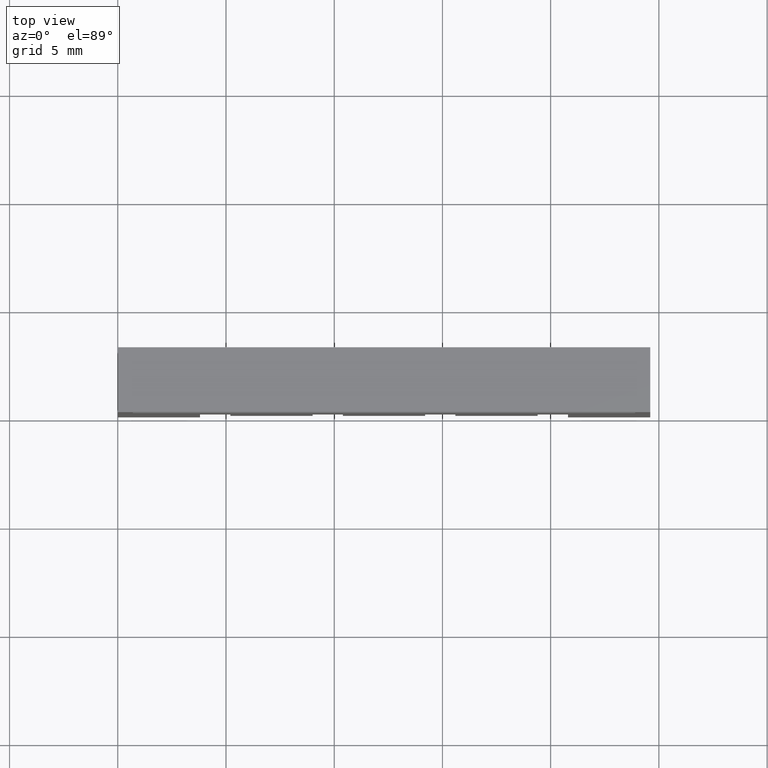
[diagram: clean part render]
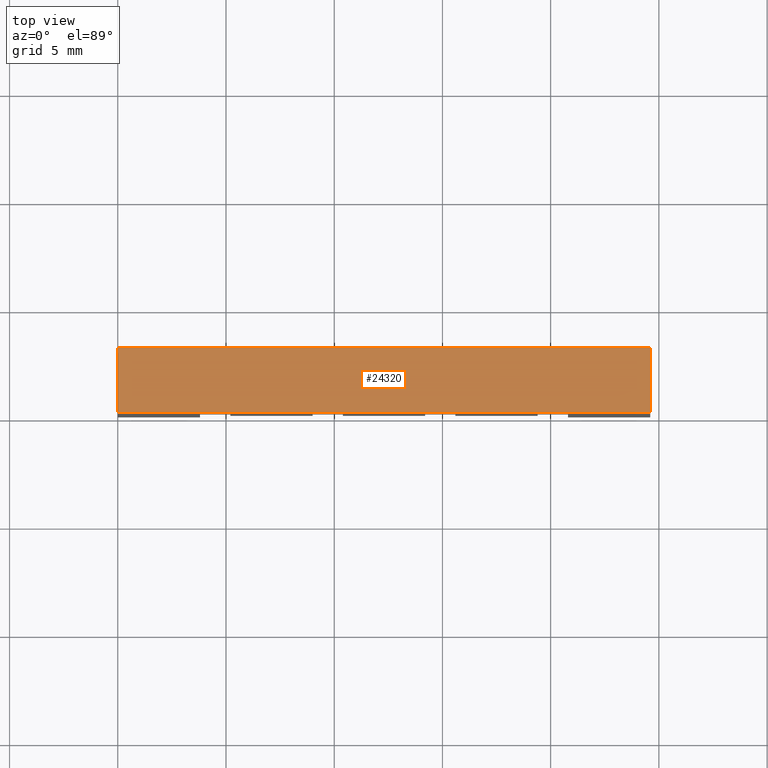
[diagram: same view with one face highlighted and labeled with its STEP entity id]
A machine part, top view. The second image highlights one B-rep face of the part: STEP entity #24320.
In plain terms, the highlighted planar face has unit normal (0, 0, -1).
Its self-contained STEP definition (entity closure, byte-faithful):
#700=CARTESIAN_POINT('',(5.60716722168537,-8.87500000000037,
58.3599999999988));
#710=VERTEX_POINT('',#700);
#740=CARTESIAN_POINT('',(5.60716722168537,-8.87500000000037,41.874984));
#750=DIRECTION('',(0.,0.,1.));
#760=VECTOR('',#750,1.);
#770=LINE('',#740,#760);
#780=CARTESIAN_POINT('',(5.60716722168537,-8.87500000000037,
33.7599999999988));
#790=VERTEX_POINT('',#780);
#800=EDGE_CURVE('',#790,#710,#770,.T.);
#3430=CARTESIAN_POINT('',(2.60716722168536,-8.87500000000037,
33.7599999999988));
#3440=VERTEX_POINT('',#3430);
#3470=CARTESIAN_POINT('',(2.60716722168536,-8.87500000000037,41.874984))
;
#3480=DIRECTION('',(0.,0.,-1.));
#3490=VECTOR('',#3480,1.);
#3500=LINE('',#3470,#3490);
#3510=CARTESIAN_POINT('',(2.60716722168536,-8.87500000000037,
58.3599999999988));
#3520=VERTEX_POINT('',#3510);
#3530=EDGE_CURVE('',#3520,#3440,#3500,.T.);
#8790=CARTESIAN_POINT('',(5.60716722168535,-8.87500000000037,
58.3599999999988));
#8800=DIRECTION('',(1.,0.,0.));
#8810=VECTOR('',#8800,1.);
#8820=LINE('',#8790,#8810);
#8830=EDGE_CURVE('',#3520,#710,#8820,.T.);
#24030=CARTESIAN_POINT('',(5.60716722168535,-8.87500000000037,
33.7599999999988));
#24040=DIRECTION('',(1.,0.,0.));
#24050=VECTOR('',#24040,1.);
#24060=LINE('',#24030,#24050);
#24070=EDGE_CURVE('',#3440,#790,#24060,.T.);
#24210=CARTESIAN_POINT('',(5.60716722168537,-8.87500000000037,
47.9599999999988));
#24220=DIRECTION('',(0.,-1.,0.));
#24230=DIRECTION('',(0.,0.,1.));
#24240=AXIS2_PLACEMENT_3D('',#24210,#24220,#24230);
#24250=PLANE('',#24240);
#24260=ORIENTED_EDGE('',*,*,#8830,.T.);
#24270=ORIENTED_EDGE('',*,*,#3530,.F.);
#24280=ORIENTED_EDGE('',*,*,#24070,.F.);
#24290=ORIENTED_EDGE('',*,*,#800,.F.);
#24300=EDGE_LOOP('',(#24290,#24280,#24270,#24260));
#24310=FACE_OUTER_BOUND('',#24300,.T.);
#24320=ADVANCED_FACE('',(#24310),#24250,.F.);